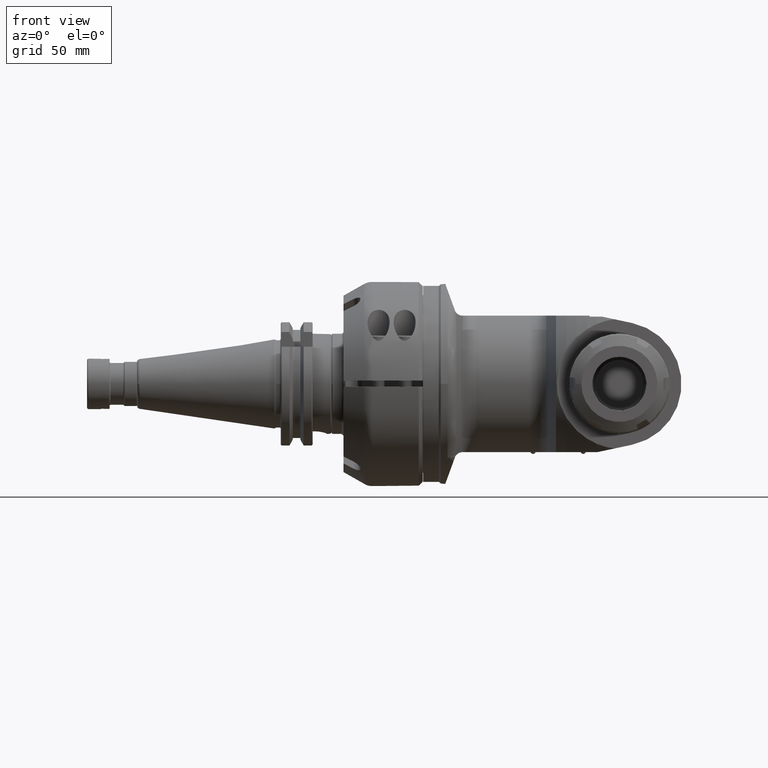
[diagram: clean part render]
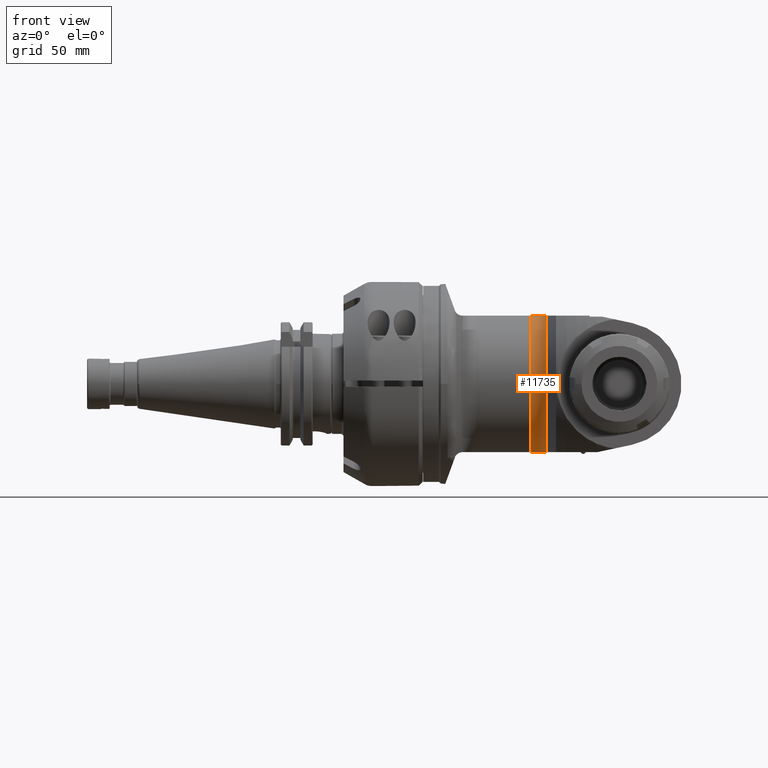
[diagram: same view with one face highlighted and labeled with its STEP entity id]
A machine part, front view. The second image highlights one B-rep face of the part: STEP entity #11735.
In plain terms, the highlighted toroidal blend (fillet) surface has major radius 45 mm and minor (blend) radius 9 mm.
Its self-contained STEP definition (entity closure, byte-faithful):
#414=B_SPLINE_CURVE_WITH_KNOTS('',3,(#16573,#16574,#16575,#16576,#16577,
#16578,#16579,#16580,#16581,#16582),.UNSPECIFIED.,.F.,.F.,(4,2,2,2,4),(2.32747365321976,
2.8780740864616,3.34957183106961,3.49005950207602,3.59989156653282),
 .UNSPECIFIED.);
#424=B_SPLINE_CURVE_WITH_KNOTS('',3,(#16809,#16810,#16811,#16812,#16813,
#16814,#16815,#16816,#16817,#16818),.UNSPECIFIED.,.F.,.F.,(4,2,2,2,4),(3.59989156653281,
3.70972363098961,3.85021130199602,4.32170904660402,4.87230947984852),
 .UNSPECIFIED.);
#726=TOROIDAL_SURFACE('',#12498,45.,9.);
#2821=FACE_OUTER_BOUND('',#3479,.T.);
#3479=EDGE_LOOP('',(#8179,#8180,#8181,#8182));
#4121=CIRCLE('',#12375,36.);
#4180=CIRCLE('',#12497,40.5);
#4594=VERTEX_POINT('',#16512);
#4595=VERTEX_POINT('',#16514);
#4605=VERTEX_POINT('',#16569);
#4660=VERTEX_POINT('',#16808);
#5878=EDGE_CURVE('',#4595,#4594,#4121,.T.);
#5890=EDGE_CURVE('',#4605,#4594,#414,.T.);
#5956=EDGE_CURVE('',#4595,#4660,#424,.T.);
#6109=EDGE_CURVE('',#4605,#4660,#4180,.T.);
#8179=ORIENTED_EDGE('',*,*,#6109,.T.);
#8180=ORIENTED_EDGE('',*,*,#5956,.F.);
#8181=ORIENTED_EDGE('',*,*,#5878,.T.);
#8182=ORIENTED_EDGE('',*,*,#5890,.F.);
#11735=ADVANCED_FACE('',(#2821),#726,.F.);
#12375=AXIS2_PLACEMENT_3D('',#16515,#13497,#13498);
#12497=AXIS2_PLACEMENT_3D('',#21634,#13773,#13774);
#12498=AXIS2_PLACEMENT_3D('',#21635,#13775,#13776);
#13497=DIRECTION('center_axis',(1.,0.,0.));
#13498=DIRECTION('ref_axis',(0.,-1.,0.));
#13773=DIRECTION('center_axis',(-1.,0.,0.));
#13774=DIRECTION('ref_axis',(0.,-1.,0.));
#13775=DIRECTION('center_axis',(1.,0.,0.));
#13776=DIRECTION('ref_axis',(0.,0.,-1.));
#16512=CARTESIAN_POINT('',(233.8669445005,-11.8321595662,-34.));
#16514=CARTESIAN_POINT('',(233.8669445005,-11.8321595662,34.));
#16515=CARTESIAN_POINT('Origin',(233.8669445005,0.,0.));
#16569=CARTESIAN_POINT('',(241.6611731346,-22.00568108462,-34.));
#16573=CARTESIAN_POINT('Ctrl Pts',(241.661173134551,-22.0056810846355,-34.));
#16574=CARTESIAN_POINT('Ctrl Pts',(241.066668194054,-20.110562878016,-34.));
#16575=CARTESIAN_POINT('Ctrl Pts',(240.279862271904,-18.2918418451213,-34.));
#16576=CARTESIAN_POINT('Ctrl Pts',(238.591879803817,-15.3323954779161,-34.));
#16577=CARTESIAN_POINT('Ctrl Pts',(237.519070508123,-13.7812532581952,-34.));
#16578=CARTESIAN_POINT('Ctrl Pts',(235.920003028459,-12.5146101157905,-34.));
#16579=CARTESIAN_POINT('Ctrl Pts',(235.443066222336,-12.2174235510846,-34.));
#16580=CARTESIAN_POINT('Ctrl Pts',(234.663546023659,-11.9198161783188,-34.));
#16581=CARTESIAN_POINT('Ctrl Pts',(234.233051382023,-11.8321595661992,-34.));
#16582=CARTESIAN_POINT('Ctrl Pts',(233.8669445005,-11.8321595661992,-34.));
#16808=CARTESIAN_POINT('',(241.6611731346,-22.00568108465,34.));
#16809=CARTESIAN_POINT('Ctrl Pts',(233.8669445005,-11.8321595661992,34.));
#16810=CARTESIAN_POINT('Ctrl Pts',(234.233051382023,-11.8321595661992,34.));
#16811=CARTESIAN_POINT('Ctrl Pts',(234.663546023659,-11.9198161783188,34.));
#16812=CARTESIAN_POINT('Ctrl Pts',(235.443066222336,-12.2174235510846,34.));
#16813=CARTESIAN_POINT('Ctrl Pts',(235.920003028459,-12.5146101157905,34.));
#16814=CARTESIAN_POINT('Ctrl Pts',(237.519070508123,-13.7812532581952,34.));
#16815=CARTESIAN_POINT('Ctrl Pts',(238.591879803817,-15.3323954779161,34.));
#16816=CARTESIAN_POINT('Ctrl Pts',(240.279862271908,-18.2918418451289,34.));
#16817=CARTESIAN_POINT('Ctrl Pts',(241.066668194062,-20.1105628780334,34.));
#16818=CARTESIAN_POINT('Ctrl Pts',(241.661173134559,-22.0056810846628,34.));
#21634=CARTESIAN_POINT('Origin',(241.6611731346,0.,0.));
#21635=CARTESIAN_POINT('Origin',(233.8669445005,0.,0.));